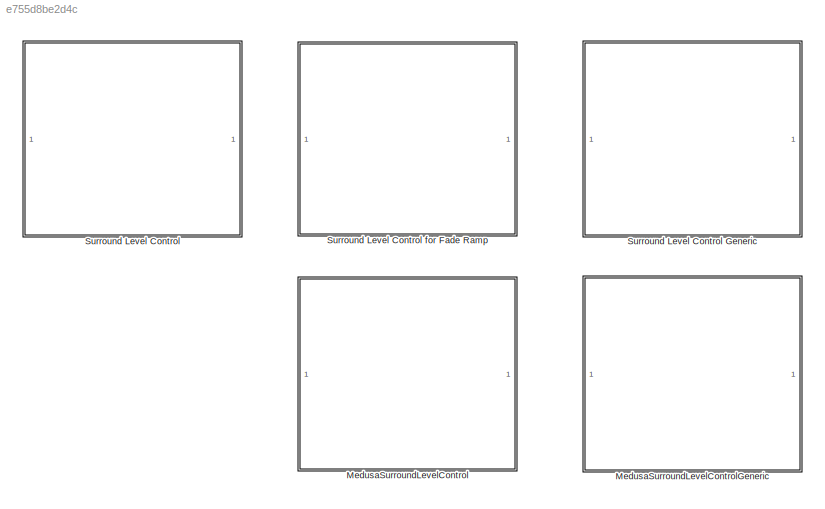
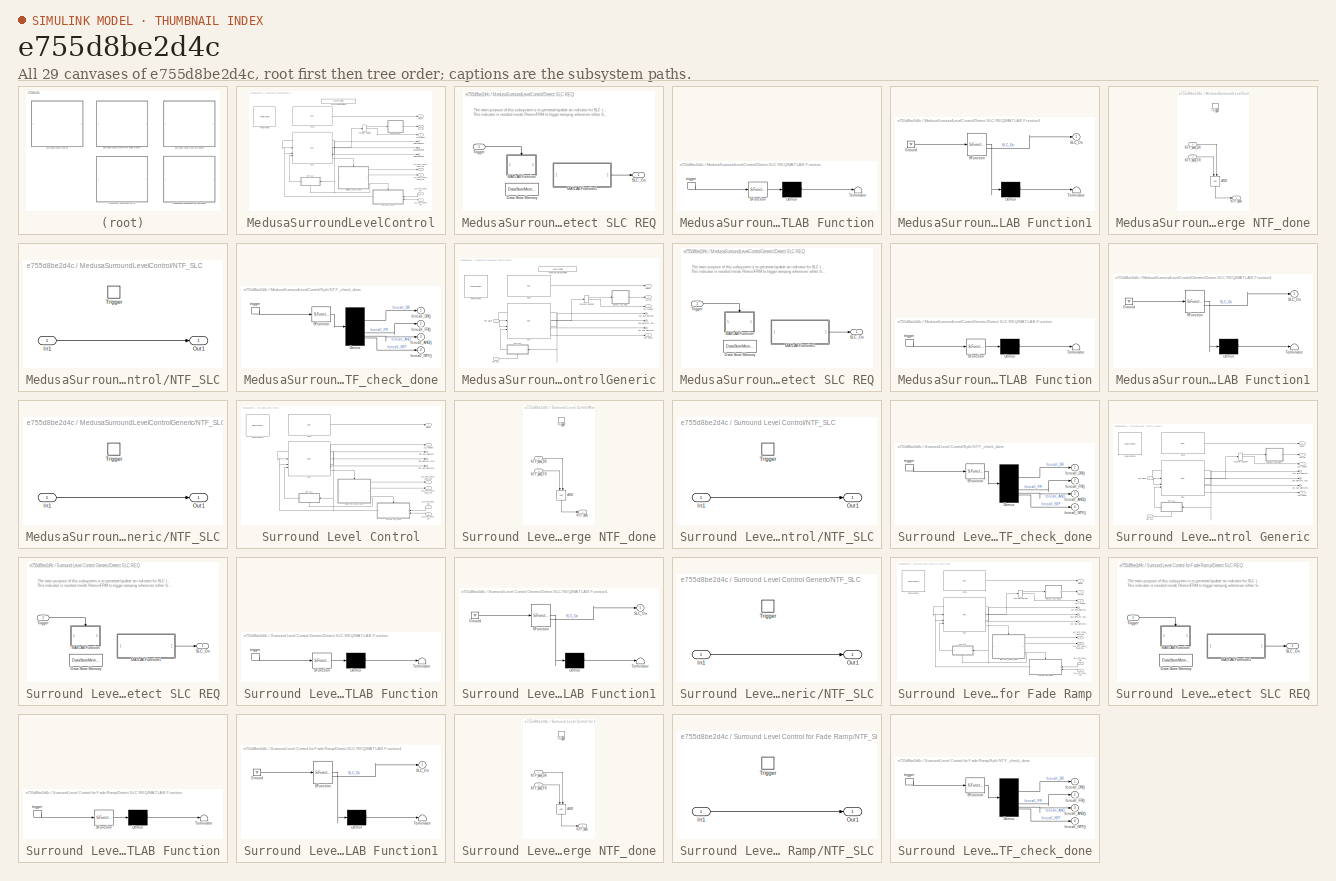
[diagram: thumbnail index - all 29 canvases of the model, root first then tree order]
MODEL slx_e755d8be2d4c
KIND library
CONFIG AbsTol = auto
CONFIG EnableMultiTasking = off
CONFIG FixedStep = auto
CONFIG MaxStep = auto
CONFIG MinStep = auto
CONFIG RelTol = 1e-3
CONFIG SampleTimeConstraint = Unconstrained
CONFIG SolverName = VariableStepAuto
CONFIG StartTime = 0.0
CONFIG StopTime = 10.0
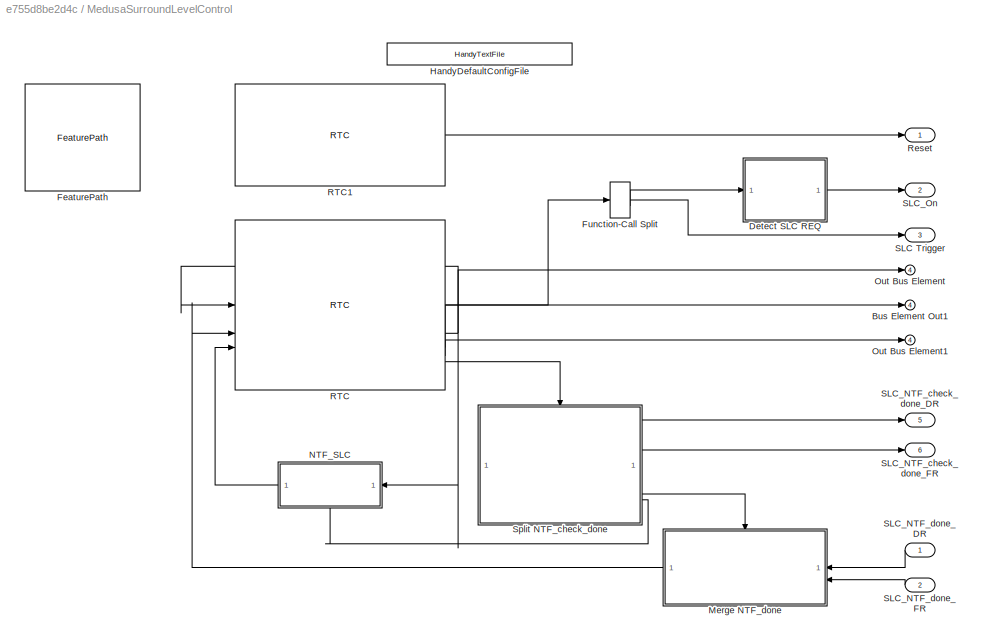
BLOCK [SubSystem] MedusaSurroundLevelControl
BLOCK [Outport] MedusaSurroundLevelControl/Bus Element Out1
  Port = 4
  VectorParamsAs1DForOutWhenUnconnected = off
BLOCK [SubSystem] MedusaSurroundLevelControl/Detect SLC REQ
BLOCK [DataStoreMemory] MedusaSurroundLevelControl/Detect SLC REQ/Data Store Memory
  DataStoreName = TriggerCount
  OutDataTypeStr = single
  ReadBeforeWriteMsg = warning
  ShowAdditionalParam = off
  SignalType = real
  WriteAfterReadMsg = warning
  WriteAfterWriteMsg = warning
BLOCK [SubSystem] MedusaSurroundLevelControl/Detect SLC REQ/MATLAB Function
  ErrorFcn = Stateflow.Translate.translate
  PermitHierarchicalResolution = ExplicitOnly
  SFBlockType = MATLAB Function
  TreatAsAtomicUnit = on
BLOCK [Demux] MedusaSurroundLevelControl/Detect SLC REQ/MATLAB Function/ Demux 
  Outputs = 1
BLOCK [S-Function] MedusaSurroundLevelControl/Detect SLC REQ/MATLAB Function/ SFunction 
  EnableBusSupport = off
  FunctionName = sf_sfun
  PortCounts = [1 1]
  SFcnIsStateOwnerBlock = off
  SFunctionDeploymentMode = off
  Tag = Stateflow S-Function 7
BLOCK [Terminator] MedusaSurroundLevelControl/Detect SLC REQ/MATLAB Function/ Terminator 
BLOCK [TriggerPort] MedusaSurroundLevelControl/Detect SLC REQ/MATLAB Function/trigger
  ShowOutputPort = on
  StatesWhenEnabling = reset
  TriggerType = function-call
  VariantControl = (inherit)
BLOCK [SubSystem] MedusaSurroundLevelControl/Detect SLC REQ/MATLAB Function1
  ErrorFcn = Stateflow.Translate.translate
  PermitHierarchicalResolution = ExplicitOnly
  SFBlockType = MATLAB Function
  TreatAsAtomicUnit = on
BLOCK [Demux] MedusaSurroundLevelControl/Detect SLC REQ/MATLAB Function1/ Demux 
  Outputs = 1
BLOCK [Ground] MedusaSurroundLevelControl/Detect SLC REQ/MATLAB Function1/ Ground 
BLOCK [S-Function] MedusaSurroundLevelControl/Detect SLC REQ/MATLAB Function1/ SFunction 
  EnableBusSupport = off
  FunctionName = sf_sfun
  PortCounts = [1 2]
  SFcnIsStateOwnerBlock = off
  SFunctionDeploymentMode = off
  Tag = Stateflow S-Function 9
BLOCK [Terminator] MedusaSurroundLevelControl/Detect SLC REQ/MATLAB Function1/ Terminator 
BLOCK [Outport] MedusaSurroundLevelControl/Detect SLC REQ/MATLAB Function1/SLC_On
BLOCK [Outport] MedusaSurroundLevelControl/Detect SLC REQ/SLC_On
BLOCK [Inport] MedusaSurroundLevelControl/Detect SLC REQ/Trigger
BLOCK [Reference] MedusaSurroundLevelControl/FeaturePath  REF=FeaturePath/FeaturePath
  SourceBlock = FeaturePath/FeaturePath
  SourceProductName = Bose Talaria
  SourceType = Talaria Feature Path
BLOCK [FunctionCallSplit] MedusaSurroundLevelControl/Function-Call Split
  IconShape = distinctive
  NumOutputPorts = 2
BLOCK [Reference] MedusaSurroundLevelControl/HandyDefaultConfigFile  REF=HandyTextFile/HandyTextFile
  SourceBlock = HandyTextFile/HandyTextFile
  SourceProductName = Bose Talaria
  SourceType = Talaria Handy Text File
BLOCK [SubSystem] MedusaSurroundLevelControl/Merge NTF_done
BLOCK [Logic] MedusaSurroundLevelControl/Merge NTF_done/AND
  AllPortsSameDT = off
  IconShape = distinctive
  NameLocation = left
  OutDataTypeStr = boolean
BLOCK [Outport] MedusaSurroundLevelControl/Merge NTF_done/NTF_done
  VectorParamsAs1DForOutWhenUnconnected = off
BLOCK [Inport] MedusaSurroundLevelControl/Merge NTF_done/NTF_done_DR
BLOCK [Inport] MedusaSurroundLevelControl/Merge NTF_done/NTF_done_FR
  Port = 2
BLOCK [TriggerPort] MedusaSurroundLevelControl/Merge NTF_done/Trigger
  PortDimensions = 1
  StatesWhenEnabling = held
  TriggerType = function-call
  VariantControl = Variant
BLOCK [SubSystem] MedusaSurroundLevelControl/NTF_SLC
  NameLocation = top
  TreatAsAtomicUnit = on
BLOCK [Inport] MedusaSurroundLevelControl/NTF_SLC/In1
BLOCK [Outport] MedusaSurroundLevelControl/NTF_SLC/Out1
BLOCK [TriggerPort] MedusaSurroundLevelControl/NTF_SLC/Trigger
  StatesWhenEnabling = held
  TriggerType = function-call
  VariantControl = Variant
BLOCK [Outport] MedusaSurroundLevelControl/Out Bus Element
  Port = 4
  VectorParamsAs1DForOutWhenUnconnected = off
BLOCK [Outport] MedusaSurroundLevelControl/Out Bus Element1
  Port = 4
  VectorParamsAs1DForOutWhenUnconnected = off
BLOCK [Reference] MedusaSurroundLevelControl/RTC  REF=RTC/RTC
  Description = Contains the value indicated by the surround knob.
  SourceBlock = RTC/RTC
  SourceProductName = Bose Talaria
  SourceType = Talaria RTC Receive
BLOCK [Reference] MedusaSurroundLevelControl/RTC1  REF=RTC/RTC
  SourceBlock = RTC/RTC
  SourceProductName = Bose Talaria
  SourceType = Talaria RTC Receive
BLOCK [Outport] MedusaSurroundLevelControl/Reset
  VectorParamsAs1DForOutWhenUnconnected = off
BLOCK [Outport] MedusaSurroundLevelControl/SLC Trigger
  Port = 3
  VectorParamsAs1DForOutWhenUnconnected = off
BLOCK [Outport] MedusaSurroundLevelControl/SLC_NTF_check_done_DR
  Port = 5
  VectorParamsAs1DForOutWhenUnconnected = off
BLOCK [Outport] MedusaSurroundLevelControl/SLC_NTF_check_done_FR
  Port = 6
  VectorParamsAs1DForOutWhenUnconnected = off
BLOCK [Inport] MedusaSurroundLevelControl/SLC_NTF_done_DR
BLOCK [Inport] MedusaSurroundLevelControl/SLC_NTF_done_FR
  Port = 2
BLOCK [Outport] MedusaSurroundLevelControl/SLC_On
  Port = 2
BLOCK [SubSystem] MedusaSurroundLevelControl/Split NTF_check_done
  ErrorFcn = Stateflow.Translate.translate
  PermitHierarchicalResolution = ExplicitOnly
  SFBlockType = MATLAB Function
  TreatAsAtomicUnit = on
BLOCK [Demux] MedusaSurroundLevelControl/Split NTF_check_done/ Demux 
BLOCK [S-Function] MedusaSurroundLevelControl/Split NTF_check_done/ SFunction 
  EnableBusSupport = off
  FunctionName = sf_sfun
  PortCounts = [1 1]
  SFcnIsStateOwnerBlock = off
  SFunctionDeploymentMode = off
  Tag = Stateflow S-Function 10
BLOCK [Outport] MedusaSurroundLevelControl/Split NTF_check_done/fcncall_AND()
  Port = 3
  VectorParamsAs1DForOutWhenUnconnected = off
BLOCK [Outport] MedusaSurroundLevelControl/Split NTF_check_done/fcncall_DR()
  VectorParamsAs1DForOutWhenUnconnected = off
BLOCK [Outport] MedusaSurroundLevelControl/Split NTF_check_done/fcncall_FR()
  Port = 2
  VectorParamsAs1DForOutWhenUnconnected = off
BLOCK [Outport] MedusaSurroundLevelControl/Split NTF_check_done/fcncall_NTF()
  Port = 4
BLOCK [TriggerPort] MedusaSurroundLevelControl/Split NTF_check_done/trigger
  ShowOutputPort = on
  StatesWhenEnabling = held
  TriggerType = function-call
  VariantControl = (inherit)
BLOCK [SubSystem] MedusaSurroundLevelControlGeneric
BLOCK [Outport] MedusaSurroundLevelControlGeneric/Bus Element Out1
  Port = 4
  VectorParamsAs1DForOutWhenUnconnected = off
BLOCK [SubSystem] MedusaSurroundLevelControlGeneric/Detect SLC REQ
BLOCK [DataStoreMemory] MedusaSurroundLevelControlGeneric/Detect SLC REQ/Data Store Memory
  DataStoreName = TriggerCount
  OutDataTypeStr = single
  ReadBeforeWriteMsg = warning
  ShowAdditionalParam = off
  SignalType = real
  WriteAfterReadMsg = warning
  WriteAfterWriteMsg = warning
BLOCK [SubSystem] MedusaSurroundLevelControlGeneric/Detect SLC REQ/MATLAB Function
  ErrorFcn = Stateflow.Translate.translate
  PermitHierarchicalResolution = ExplicitOnly
  SFBlockType = MATLAB Function
  TreatAsAtomicUnit = on
BLOCK [Demux] MedusaSurroundLevelControlGeneric/Detect SLC REQ/MATLAB Function/ Demux 
  Outputs = 1
BLOCK [S-Function] MedusaSurroundLevelControlGeneric/Detect SLC REQ/MATLAB Function/ SFunction 
  EnableBusSupport = off
  FunctionName = sf_sfun
  PortCounts = [1 1]
  SFcnIsStateOwnerBlock = off
  SFunctionDeploymentMode = off
  Tag = Stateflow S-Function 5
BLOCK [Terminator] MedusaSurroundLevelControlGeneric/Detect SLC REQ/MATLAB Function/ Terminator 
BLOCK [TriggerPort] MedusaSurroundLevelControlGeneric/Detect SLC REQ/MATLAB Function/trigger
  ShowOutputPort = on
  StatesWhenEnabling = reset
  TriggerType = function-call
  VariantControl = (inherit)
BLOCK [SubSystem] MedusaSurroundLevelControlGeneric/Detect SLC REQ/MATLAB Function1
  ErrorFcn = Stateflow.Translate.translate
  PermitHierarchicalResolution = ExplicitOnly
  SFBlockType = MATLAB Function
  TreatAsAtomicUnit = on
BLOCK [Demux] MedusaSurroundLevelControlGeneric/Detect SLC REQ/MATLAB Function1/ Demux 
  Outputs = 1
BLOCK [Ground] MedusaSurroundLevelControlGeneric/Detect SLC REQ/MATLAB Function1/ Ground 
BLOCK [S-Function] MedusaSurroundLevelControlGeneric/Detect SLC REQ/MATLAB Function1/ SFunction 
  EnableBusSupport = off
  FunctionName = sf_sfun
  PortCounts = [1 2]
  SFcnIsStateOwnerBlock = off
  SFunctionDeploymentMode = off
  Tag = Stateflow S-Function 6
BLOCK [Terminator] MedusaSurroundLevelControlGeneric/Detect SLC REQ/MATLAB Function1/ Terminator 
BLOCK [Outport] MedusaSurroundLevelControlGeneric/Detect SLC REQ/MATLAB Function1/SLC_On
BLOCK [Outport] MedusaSurroundLevelControlGeneric/Detect SLC REQ/SLC_On
BLOCK [Inport] MedusaSurroundLevelControlGeneric/Detect SLC REQ/Trigger
BLOCK [Reference] MedusaSurroundLevelControlGeneric/FeaturePath  REF=FeaturePath/FeaturePath
  SourceBlock = FeaturePath/FeaturePath
  SourceProductName = Bose Talaria
  SourceType = Talaria Feature Path
BLOCK [FunctionCallSplit] MedusaSurroundLevelControlGeneric/Function-Call Split
  IconShape = distinctive
  NumOutputPorts = 2
BLOCK [Reference] MedusaSurroundLevelControlGeneric/HandyDefaultConfigFile  REF=HandyTextFile/HandyTextFile
  SourceBlock = HandyTextFile/HandyTextFile
  SourceProductName = Bose Talaria
  SourceType = Talaria Handy Text File
BLOCK [Outport] MedusaSurroundLevelControlGeneric/NTF Check
  Port = 5
BLOCK [Inport] MedusaSurroundLevelControlGeneric/NTF Done
BLOCK [Inport] MedusaSurroundLevelControlGeneric/NTF SLC
  Port = 2
BLOCK [SubSystem] MedusaSurroundLevelControlGeneric/NTF_SLC
  NameLocation = top
  TreatAsAtomicUnit = on
BLOCK [Inport] MedusaSurroundLevelControlGeneric/NTF_SLC/In1
BLOCK [Outport] MedusaSurroundLevelControlGeneric/NTF_SLC/Out1
BLOCK [TriggerPort] MedusaSurroundLevelControlGeneric/NTF_SLC/Trigger
  StatesWhenEnabling = held
  TriggerType = function-call
  VariantControl = Variant
BLOCK [Outport] MedusaSurroundLevelControlGeneric/Out Bus Element
  Port = 4
  VectorParamsAs1DForOutWhenUnconnected = off
BLOCK [Outport] MedusaSurroundLevelControlGeneric/Out Bus Element1
  Port = 4
  VectorParamsAs1DForOutWhenUnconnected = off
BLOCK [Reference] MedusaSurroundLevelControlGeneric/RTC  REF=RTC/RTC
  Description = Contains the value indicated by the surround knob.
  SourceBlock = RTC/RTC
  SourceProductName = Bose Talaria
  SourceType = Talaria RTC Receive
BLOCK [Reference] MedusaSurroundLevelControlGeneric/RTC1  REF=RTC/RTC
  SourceBlock = RTC/RTC
  SourceProductName = Bose Talaria
  SourceType = Talaria RTC Receive
BLOCK [Outport] MedusaSurroundLevelControlGeneric/Reset
  VectorParamsAs1DForOutWhenUnconnected = off
BLOCK [Outport] MedusaSurroundLevelControlGeneric/SLC Trigger
  Port = 3
  VectorParamsAs1DForOutWhenUnconnected = off
BLOCK [Outport] MedusaSurroundLevelControlGeneric/SLC_On
  Port = 2
BLOCK [SubSystem] Surround Level Control
BLOCK [SubSystem] Surround Level Control Generic
BLOCK [Outport] Surround Level Control Generic/Bus Element Out1
  Port = 4
  VectorParamsAs1DForOutWhenUnconnected = off
BLOCK [SubSystem] Surround Level Control Generic/Detect SLC REQ
BLOCK [DataStoreMemory] Surround Level Control Generic/Detect SLC REQ/Data Store Memory
  DataStoreName = TriggerCount
  OutDataTypeStr = single
  ReadBeforeWriteMsg = warning
  ShowAdditionalParam = off
  SignalType = real
  WriteAfterReadMsg = warning
  WriteAfterWriteMsg = warning
BLOCK [SubSystem] Surround Level Control Generic/Detect SLC REQ/MATLAB Function
  ErrorFcn = Stateflow.Translate.translate
  PermitHierarchicalResolution = ExplicitOnly
  SFBlockType = MATLAB Function
  TreatAsAtomicUnit = on
BLOCK [Demux] Surround Level Control Generic/Detect SLC REQ/MATLAB Function/ Demux 
  Outputs = 1
BLOCK [S-Function] Surround Level Control Generic/Detect SLC REQ/MATLAB Function/ SFunction 
  EnableBusSupport = off
  FunctionName = sf_sfun
  PortCounts = [1 1]
  SFcnIsStateOwnerBlock = off
  SFunctionDeploymentMode = off
  Tag = Stateflow S-Function 3
BLOCK [Terminator] Surround Level Control Generic/Detect SLC REQ/MATLAB Function/ Terminator 
BLOCK [TriggerPort] Surround Level Control Generic/Detect SLC REQ/MATLAB Function/trigger
  ShowOutputPort = on
  StatesWhenEnabling = reset
  TriggerType = function-call
  VariantControl = (inherit)
BLOCK [SubSystem] Surround Level Control Generic/Detect SLC REQ/MATLAB Function1
  ErrorFcn = Stateflow.Translate.translate
  PermitHierarchicalResolution = ExplicitOnly
  SFBlockType = MATLAB Function
  TreatAsAtomicUnit = on
BLOCK [Demux] Surround Level Control Generic/Detect SLC REQ/MATLAB Function1/ Demux 
  Outputs = 1
BLOCK [Ground] Surround Level Control Generic/Detect SLC REQ/MATLAB Function1/ Ground 
BLOCK [S-Function] Surround Level Control Generic/Detect SLC REQ/MATLAB Function1/ SFunction 
  EnableBusSupport = off
  FunctionName = sf_sfun
  PortCounts = [1 2]
  SFcnIsStateOwnerBlock = off
  SFunctionDeploymentMode = off
  Tag = Stateflow S-Function 4
BLOCK [Terminator] Surround Level Control Generic/Detect SLC REQ/MATLAB Function1/ Terminator 
BLOCK [Outport] Surround Level Control Generic/Detect SLC REQ/MATLAB Function1/SLC_On
BLOCK [Outport] Surround Level Control Generic/Detect SLC REQ/SLC_On
BLOCK [Inport] Surround Level Control Generic/Detect SLC REQ/Trigger
BLOCK [Reference] Surround Level Control Generic/FeaturePath  REF=FeaturePath/FeaturePath
  SourceBlock = FeaturePath/FeaturePath
  SourceProductName = Bose Talaria
  SourceType = Bose Feature Path
BLOCK [FunctionCallSplit] Surround Level Control Generic/Function-Call Split
  IconShape = distinctive
  NumOutputPorts = 2
BLOCK [Outport] Surround Level Control Generic/NTF Check
  Port = 5
BLOCK [Inport] Surround Level Control Generic/NTF Done
BLOCK [Inport] Surround Level Control Generic/NTF SLC
  Port = 2
BLOCK [SubSystem] Surround Level Control Generic/NTF_SLC
  NameLocation = top
  TreatAsAtomicUnit = on
BLOCK [Inport] Surround Level Control Generic/NTF_SLC/In1
BLOCK [Outport] Surround Level Control Generic/NTF_SLC/Out1
BLOCK [TriggerPort] Surround Level Control Generic/NTF_SLC/Trigger
  StatesWhenEnabling = held
  TriggerType = function-call
  VariantControl = Variant
BLOCK [Outport] Surround Level Control Generic/Out Bus Element
  Port = 4
  VectorParamsAs1DForOutWhenUnconnected = off
BLOCK [Outport] Surround Level Control Generic/Out Bus Element1
  Port = 4
  VectorParamsAs1DForOutWhenUnconnected = off
BLOCK [Reference] Surround Level Control Generic/RTC  REF=RTC/RTC
  Description = Contains the value indicated by the surround knob.
  SourceBlock = RTC/RTC
  SourceProductName = Bose Talaria
  SourceType = Bose RTC Receive
BLOCK [Reference] Surround Level Control Generic/RTC1  REF=RTC/RTC
  SourceBlock = RTC/RTC
  SourceProductName = Bose Talaria
  SourceType = Bose RTC Receive
BLOCK [Outport] Surround Level Control Generic/Reset
  VectorParamsAs1DForOutWhenUnconnected = off
BLOCK [Outport] Surround Level Control Generic/SLC Trigger
  Port = 3
  VectorParamsAs1DForOutWhenUnconnected = off
BLOCK [Outport] Surround Level Control Generic/SLC_On
  Port = 2
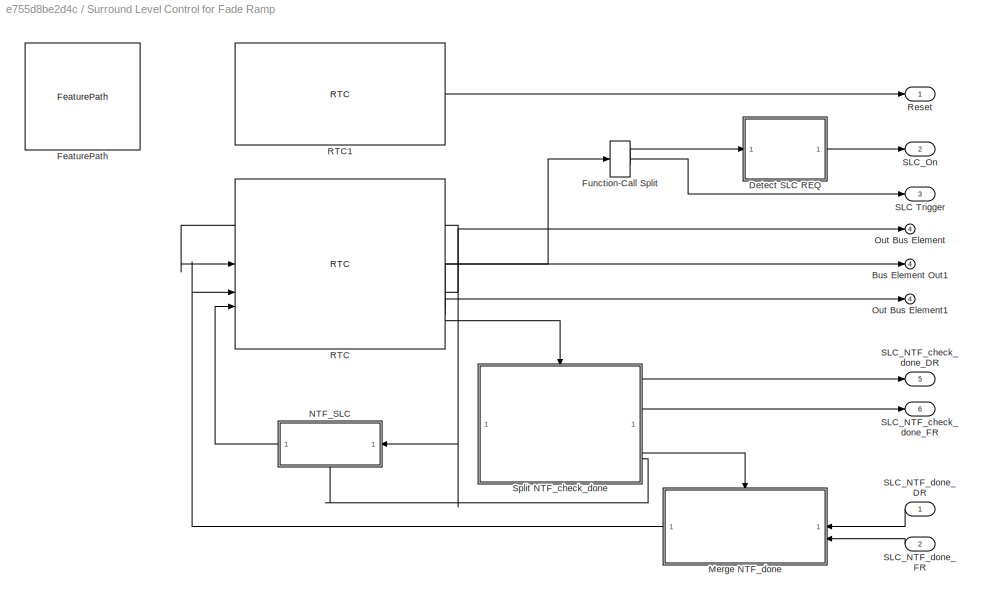
BLOCK [SubSystem] Surround Level Control for Fade Ramp
BLOCK [Outport] Surround Level Control for Fade Ramp/Bus Element Out1
  Port = 4
  VectorParamsAs1DForOutWhenUnconnected = off
BLOCK [SubSystem] Surround Level Control for Fade Ramp/Detect SLC REQ
BLOCK [DataStoreMemory] Surround Level Control for Fade Ramp/Detect SLC REQ/Data Store Memory
  DataStoreName = TriggerCount
  OutDataTypeStr = single
  ReadBeforeWriteMsg = warning
  ShowAdditionalParam = off
  SignalType = real
  WriteAfterReadMsg = warning
  WriteAfterWriteMsg = warning
BLOCK [SubSystem] Surround Level Control for Fade Ramp/Detect SLC REQ/MATLAB Function
  ErrorFcn = Stateflow.Translate.translate
  PermitHierarchicalResolution = ExplicitOnly
  SFBlockType = MATLAB Function
  TreatAsAtomicUnit = on
BLOCK [Demux] Surround Level Control for Fade Ramp/Detect SLC REQ/MATLAB Function/ Demux 
  Outputs = 1
BLOCK [S-Function] Surround Level Control for Fade Ramp/Detect SLC REQ/MATLAB Function/ SFunction 
  EnableBusSupport = off
  FunctionName = sf_sfun
  PortCounts = [1 1]
  SFcnIsStateOwnerBlock = off
  SFunctionDeploymentMode = off
  Tag = Stateflow S-Function 1
BLOCK [Terminator] Surround Level Control for Fade Ramp/Detect SLC REQ/MATLAB Function/ Terminator 
BLOCK [TriggerPort] Surround Level Control for Fade Ramp/Detect SLC REQ/MATLAB Function/trigger
  ShowOutputPort = on
  StatesWhenEnabling = reset
  TriggerType = function-call
  VariantControl = (inherit)
BLOCK [SubSystem] Surround Level Control for Fade Ramp/Detect SLC REQ/MATLAB Function1
  ErrorFcn = Stateflow.Translate.translate
  PermitHierarchicalResolution = ExplicitOnly
  SFBlockType = MATLAB Function
  TreatAsAtomicUnit = on
BLOCK [Demux] Surround Level Control for Fade Ramp/Detect SLC REQ/MATLAB Function1/ Demux 
  Outputs = 1
BLOCK [Ground] Surround Level Control for Fade Ramp/Detect SLC REQ/MATLAB Function1/ Ground 
BLOCK [S-Function] Surround Level Control for Fade Ramp/Detect SLC REQ/MATLAB Function1/ SFunction 
  EnableBusSupport = off
  FunctionName = sf_sfun
  PortCounts = [1 2]
  SFcnIsStateOwnerBlock = off
  SFunctionDeploymentMode = off
  Tag = Stateflow S-Function 8
BLOCK [Terminator] Surround Level Control for Fade Ramp/Detect SLC REQ/MATLAB Function1/ Terminator 
BLOCK [Outport] Surround Level Control for Fade Ramp/Detect SLC REQ/MATLAB Function1/SLC_On
BLOCK [Outport] Surround Level Control for Fade Ramp/Detect SLC REQ/SLC_On
BLOCK [Inport] Surround Level Control for Fade Ramp/Detect SLC REQ/Trigger
BLOCK [Reference] Surround Level Control for Fade Ramp/FeaturePath  REF=FeaturePath/FeaturePath
  SourceBlock = FeaturePath/FeaturePath
  SourceProductName = Bose Talaria
  SourceType = Bose Feature Path
BLOCK [FunctionCallSplit] Surround Level Control for Fade Ramp/Function-Call Split
  IconShape = distinctive
  NumOutputPorts = 2
BLOCK [SubSystem] Surround Level Control for Fade Ramp/Merge NTF_done
BLOCK [Logic] Surround Level Control for Fade Ramp/Merge NTF_done/AND
  AllPortsSameDT = off
  IconShape = distinctive
  NameLocation = left
  OutDataTypeStr = boolean
BLOCK [Outport] Surround Level Control for Fade Ramp/Merge NTF_done/NTF_done
  VectorParamsAs1DForOutWhenUnconnected = off
BLOCK [Inport] Surround Level Control for Fade Ramp/Merge NTF_done/NTF_done_DR
BLOCK [Inport] Surround Level Control for Fade Ramp/Merge NTF_done/NTF_done_FR
  Port = 2
BLOCK [TriggerPort] Surround Level Control for Fade Ramp/Merge NTF_done/Trigger
  PortDimensions = 1
  StatesWhenEnabling = held
  TriggerType = function-call
  VariantControl = Variant
BLOCK [SubSystem] Surround Level Control for Fade Ramp/NTF_SLC
  NameLocation = top
  TreatAsAtomicUnit = on
BLOCK [Inport] Surround Level Control for Fade Ramp/NTF_SLC/In1
BLOCK [Outport] Surround Level Control for Fade Ramp/NTF_SLC/Out1
BLOCK [TriggerPort] Surround Level Control for Fade Ramp/NTF_SLC/Trigger
  StatesWhenEnabling = held
  TriggerType = function-call
  VariantControl = Variant
BLOCK [Outport] Surround Level Control for Fade Ramp/Out Bus Element
  Port = 4
  VectorParamsAs1DForOutWhenUnconnected = off
BLOCK [Outport] Surround Level Control for Fade Ramp/Out Bus Element1
  Port = 4
  VectorParamsAs1DForOutWhenUnconnected = off
BLOCK [Reference] Surround Level Control for Fade Ramp/RTC  REF=RTC/RTC
  Description = Contains the value indicated by the surround knob.
  SourceBlock = RTC/RTC
  SourceProductName = Bose Talaria
  SourceType = Bose RTC Receive
BLOCK [Reference] Surround Level Control for Fade Ramp/RTC1  REF=RTC/RTC
  SourceBlock = RTC/RTC
  SourceProductName = Bose Talaria
  SourceType = Bose RTC Receive
BLOCK [Outport] Surround Level Control for Fade Ramp/Reset
  VectorParamsAs1DForOutWhenUnconnected = off
BLOCK [Outport] Surround Level Control for Fade Ramp/SLC Trigger
  Port = 3
  VectorParamsAs1DForOutWhenUnconnected = off
BLOCK [Outport] Surround Level Control for Fade Ramp/SLC_NTF_check_done_DR
  Port = 5
  VectorParamsAs1DForOutWhenUnconnected = off
BLOCK [Outport] Surround Level Control for Fade Ramp/SLC_NTF_check_done_FR
  Port = 6
  VectorParamsAs1DForOutWhenUnconnected = off
BLOCK [Inport] Surround Level Control for Fade Ramp/SLC_NTF_done_DR
BLOCK [Inport] Surround Level Control for Fade Ramp/SLC_NTF_done_FR
  Port = 2
BLOCK [Outport] Surround Level Control for Fade Ramp/SLC_On
  Port = 2
BLOCK [SubSystem] Surround Level Control for Fade Ramp/Split NTF_check_done
  ErrorFcn = Stateflow.Translate.translate
  PermitHierarchicalResolution = ExplicitOnly
  SFBlockType = MATLAB Function
  TreatAsAtomicUnit = on
BLOCK [Demux] Surround Level Control for Fade Ramp/Split NTF_check_done/ Demux 
BLOCK [S-Function] Surround Level Control for Fade Ramp/Split NTF_check_done/ SFunction 
  EnableBusSupport = off
  FunctionName = sf_sfun
  PortCounts = [1 1]
  SFcnIsStateOwnerBlock = off
  SFunctionDeploymentMode = off
  Tag = Stateflow S-Function 2
BLOCK [Outport] Surround Level Control for Fade Ramp/Split NTF_check_done/fcncall_AND()
  Port = 3
  VectorParamsAs1DForOutWhenUnconnected = off
BLOCK [Outport] Surround Level Control for Fade Ramp/Split NTF_check_done/fcncall_DR()
  VectorParamsAs1DForOutWhenUnconnected = off
BLOCK [Outport] Surround Level Control for Fade Ramp/Split NTF_check_done/fcncall_FR()
  Port = 2
  VectorParamsAs1DForOutWhenUnconnected = off
BLOCK [Outport] Surround Level Control for Fade Ramp/Split NTF_check_done/fcncall_NTF()
  Port = 4
BLOCK [TriggerPort] Surround Level Control for Fade Ramp/Split NTF_check_done/trigger
  ShowOutputPort = on
  StatesWhenEnabling = held
  TriggerType = function-call
  VariantControl = (inherit)
BLOCK [Outport] Surround Level Control/Bus Element Out1
  Port = 3
  VectorParamsAs1DForOutWhenUnconnected = off
BLOCK [Reference] Surround Level Control/FeaturePath  REF=FeaturePath/FeaturePath
  SourceBlock = FeaturePath/FeaturePath
  SourceProductName = Bose Talaria
  SourceType = Bose Feature Path
BLOCK [SubSystem] Surround Level Control/Merge NTF_done
BLOCK [Logic] Surround Level Control/Merge NTF_done/AND
  AllPortsSameDT = off
  IconShape = distinctive
  NameLocation = left
  OutDataTypeStr = boolean
BLOCK [Outport] Surround Level Control/Merge NTF_done/NTF_done
  VectorParamsAs1DForOutWhenUnconnected = off
BLOCK [Inport] Surround Level Control/Merge NTF_done/NTF_done_DR
BLOCK [Inport] Surround Level Control/Merge NTF_done/NTF_done_FR
  Port = 2
BLOCK [TriggerPort] Surround Level Control/Merge NTF_done/Trigger
  PortDimensions = 1
  StatesWhenEnabling = held
  TriggerType = function-call
  VariantControl = Variant
BLOCK [SubSystem] Surround Level Control/NTF_SLC
  NameLocation = top
  TreatAsAtomicUnit = on
BLOCK [Inport] Surround Level Control/NTF_SLC/In1
BLOCK [Outport] Surround Level Control/NTF_SLC/Out1
BLOCK [TriggerPort] Surround Level Control/NTF_SLC/Trigger
  StatesWhenEnabling = held
  TriggerType = function-call
  VariantControl = Variant
BLOCK [Outport] Surround Level Control/Out Bus Element
  Port = 3
  VectorParamsAs1DForOutWhenUnconnected = off
BLOCK [Outport] Surround Level Control/Out Bus Element1
  Port = 3
  VectorParamsAs1DForOutWhenUnconnected = off
BLOCK [Reference] Surround Level Control/RTC  REF=RTC/RTC
  Description = Contains the value indicated by the surround knob.
  SourceBlock = RTC/RTC
  SourceProductName = Bose Talaria
  SourceType = Bose RTC Receive
BLOCK [Reference] Surround Level Control/RTC1  REF=RTC/RTC
  SourceBlock = RTC/RTC
  SourceProductName = Bose Talaria
  SourceType = Bose RTC Receive
BLOCK [Outport] Surround Level Control/Reset
  VectorParamsAs1DForOutWhenUnconnected = off
BLOCK [Outport] Surround Level Control/SLC Trigger
  Port = 2
  VectorParamsAs1DForOutWhenUnconnected = off
BLOCK [Outport] Surround Level Control/SLC_NTF_check_done_DR
  Port = 4
  VectorParamsAs1DForOutWhenUnconnected = off
BLOCK [Outport] Surround Level Control/SLC_NTF_check_done_FR
  Port = 5
  VectorParamsAs1DForOutWhenUnconnected = off
BLOCK [Inport] Surround Level Control/SLC_NTF_done_DR
BLOCK [Inport] Surround Level Control/SLC_NTF_done_FR
  Port = 2
BLOCK [SubSystem] Surround Level Control/Split NTF_check_done
  ErrorFcn = Stateflow.Translate.translate
  PermitHierarchicalResolution = ExplicitOnly
  SFBlockType = MATLAB Function
  TreatAsAtomicUnit = on
BLOCK [Demux] Surround Level Control/Split NTF_check_done/ Demux 
BLOCK [S-Function] Surround Level Control/Split NTF_check_done/ SFunction 
  EnableBusSupport = off
  FunctionName = sf_sfun
  PortCounts = [1 1]
  SFcnIsStateOwnerBlock = off
  SFunctionDeploymentMode = off
  Tag = Stateflow S-Function 42
BLOCK [Outport] Surround Level Control/Split NTF_check_done/fcncall_AND()
  Port = 3
  VectorParamsAs1DForOutWhenUnconnected = off
BLOCK [Outport] Surround Level Control/Split NTF_check_done/fcncall_DR()
  VectorParamsAs1DForOutWhenUnconnected = off
BLOCK [Outport] Surround Level Control/Split NTF_check_done/fcncall_FR()
  Port = 2
  VectorParamsAs1DForOutWhenUnconnected = off
BLOCK [Outport] Surround Level Control/Split NTF_check_done/fcncall_NTF()
  Port = 4
BLOCK [TriggerPort] Surround Level Control/Split NTF_check_done/trigger
  ShowOutputPort = on
  StatesWhenEnabling = held
  TriggerType = function-call
  VariantControl = (inherit)
ANNOTATION MedusaSurroundLevelControl/Detect SLC REQ: The main purpose of this subsystem is to generate/update an indicator for SLC trigger i.e., whether SLC is triggered or not. This indicator is needed inside Premix/FRM to trigger ramping whenever either SLC or Fader Downmix is requested .
ANNOTATION MedusaSurroundLevelControlGeneric/Detect SLC REQ: The main purpose of this subsystem is to generate/update an indicator for SLC trigger i.e., whether SLC is triggered or not. This indicator is needed inside Premix/FRM to trigger ramping whenever either SLC or Fader Downmix is requested .
ANNOTATION Surround Level Control Generic/Detect SLC REQ: The main purpose of this subsystem is to generate/update an indicator for SLC trigger i.e., whether SLC is triggered or not. This indicator is needed inside Premix/FRM to trigger ramping whenever either SLC or Fader Downmix is requested .
ANNOTATION Surround Level Control for Fade Ramp/Detect SLC REQ: The main purpose of this subsystem is to generate/update an indicator for SLC trigger i.e., whether SLC is triggered or not. This indicator is needed inside Premix/FRM to trigger ramping whenever either SLC or Fader Downmix is requested .
LINE MedusaSurroundLevelControl/Detect SLC REQ/MATLAB Function1:1 -> MedusaSurroundLevelControl/Detect SLC REQ/SLC_On:1
LINE MedusaSurroundLevelControl/Detect SLC REQ/Trigger:1 -> MedusaSurroundLevelControl/Detect SLC REQ/MATLAB Function:trigger
LINE MedusaSurroundLevelControl/Detect SLC REQ:1 -> MedusaSurroundLevelControl/SLC_On:1
LINE MedusaSurroundLevelControl/Function-Call Split:1 -> MedusaSurroundLevelControl/SLC Trigger:1
LINE MedusaSurroundLevelControl/Function-Call Split:2 -> MedusaSurroundLevelControl/Detect SLC REQ:1
LINE MedusaSurroundLevelControl/Merge NTF_done/AND:1 -> MedusaSurroundLevelControl/Merge NTF_done/NTF_done:1
LINE MedusaSurroundLevelControl/Merge NTF_done/NTF_done_DR:1 -> MedusaSurroundLevelControl/Merge NTF_done/AND:2
LINE MedusaSurroundLevelControl/Merge NTF_done/NTF_done_FR:1 -> MedusaSurroundLevelControl/Merge NTF_done/AND:1
LINE MedusaSurroundLevelControl/Merge NTF_done:1 -> MedusaSurroundLevelControl/RTC:2
LINE MedusaSurroundLevelControl/NTF_SLC/In1:1 -> MedusaSurroundLevelControl/NTF_SLC/Out1:1
LINE MedusaSurroundLevelControl/NTF_SLC:1 -> MedusaSurroundLevelControl/RTC:3
LINE MedusaSurroundLevelControl/RTC1:1 -> MedusaSurroundLevelControl/Reset:1
LINE MedusaSurroundLevelControl/RTC:1 -> MedusaSurroundLevelControl/Function-Call Split:1
NET MedusaSurroundLevelControl/RTC:2 -> MedusaSurroundLevelControl/NTF_SLC:1, MedusaSurroundLevelControl/Out Bus Element:1, MedusaSurroundLevelControl/RTC:1
LINE MedusaSurroundLevelControl/RTC:3 -> MedusaSurroundLevelControl/Bus Element Out1:1
LINE MedusaSurroundLevelControl/RTC:4 -> MedusaSurroundLevelControl/Out Bus Element1:1
LINE MedusaSurroundLevelControl/RTC:5 -> MedusaSurroundLevelControl/Split NTF_check_done:trigger
LINE MedusaSurroundLevelControl/SLC_NTF_done_DR:1 -> MedusaSurroundLevelControl/Merge NTF_done:1
LINE MedusaSurroundLevelControl/SLC_NTF_done_FR:1 -> MedusaSurroundLevelControl/Merge NTF_done:2
LINE MedusaSurroundLevelControl/Split NTF_check_done:1 -> MedusaSurroundLevelControl/SLC_NTF_check_done_DR:1
LINE MedusaSurroundLevelControl/Split NTF_check_done:2 -> MedusaSurroundLevelControl/SLC_NTF_check_done_FR:1
LINE MedusaSurroundLevelControl/Split NTF_check_done:3 -> MedusaSurroundLevelControl/Merge NTF_done:trigger
LINE MedusaSurroundLevelControl/Split NTF_check_done:4 -> MedusaSurroundLevelControl/NTF_SLC:trigger
LINE MedusaSurroundLevelControlGeneric/Detect SLC REQ/MATLAB Function1:1 -> MedusaSurroundLevelControlGeneric/Detect SLC REQ/SLC_On:1
LINE MedusaSurroundLevelControlGeneric/Detect SLC REQ/Trigger:1 -> MedusaSurroundLevelControlGeneric/Detect SLC REQ/MATLAB Function:trigger
LINE MedusaSurroundLevelControlGeneric/Detect SLC REQ:1 -> MedusaSurroundLevelControlGeneric/SLC_On:1
LINE MedusaSurroundLevelControlGeneric/Function-Call Split:1 -> MedusaSurroundLevelControlGeneric/SLC Trigger:1
LINE MedusaSurroundLevelControlGeneric/Function-Call Split:2 -> MedusaSurroundLevelControlGeneric/Detect SLC REQ:1
LINE MedusaSurroundLevelControlGeneric/NTF Done:1 -> MedusaSurroundLevelControlGeneric/RTC:2
LINE MedusaSurroundLevelControlGeneric/NTF SLC:1 -> MedusaSurroundLevelControlGeneric/NTF_SLC:trigger
LINE MedusaSurroundLevelControlGeneric/NTF_SLC/In1:1 -> MedusaSurroundLevelControlGeneric/NTF_SLC/Out1:1
LINE MedusaSurroundLevelControlGeneric/NTF_SLC:1 -> MedusaSurroundLevelControlGeneric/RTC:3
LINE MedusaSurroundLevelControlGeneric/RTC1:1 -> MedusaSurroundLevelControlGeneric/Reset:1
LINE MedusaSurroundLevelControlGeneric/RTC:1 -> MedusaSurroundLevelControlGeneric/Function-Call Split:1
NET MedusaSurroundLevelControlGeneric/RTC:2 -> MedusaSurroundLevelControlGeneric/NTF_SLC:1, MedusaSurroundLevelControlGeneric/Out Bus Element:1, MedusaSurroundLevelControlGeneric/RTC:1
LINE MedusaSurroundLevelControlGeneric/RTC:3 -> MedusaSurroundLevelControlGeneric/Bus Element Out1:1
LINE MedusaSurroundLevelControlGeneric/RTC:4 -> MedusaSurroundLevelControlGeneric/Out Bus Element1:1
LINE MedusaSurroundLevelControlGeneric/RTC:5 -> MedusaSurroundLevelControlGeneric/NTF Check:1
LINE Surround Level Control Generic/Detect SLC REQ/MATLAB Function1:1 -> Surround Level Control Generic/Detect SLC REQ/SLC_On:1
LINE Surround Level Control Generic/Detect SLC REQ/Trigger:1 -> Surround Level Control Generic/Detect SLC REQ/MATLAB Function:trigger
LINE Surround Level Control Generic/Detect SLC REQ:1 -> Surround Level Control Generic/SLC_On:1
LINE Surround Level Control Generic/Function-Call Split:1 -> Surround Level Control Generic/SLC Trigger:1
LINE Surround Level Control Generic/Function-Call Split:2 -> Surround Level Control Generic/Detect SLC REQ:1
LINE Surround Level Control Generic/NTF Done:1 -> Surround Level Control Generic/RTC:2
LINE Surround Level Control Generic/NTF SLC:1 -> Surround Level Control Generic/NTF_SLC:trigger
LINE Surround Level Control Generic/NTF_SLC/In1:1 -> Surround Level Control Generic/NTF_SLC/Out1:1
LINE Surround Level Control Generic/NTF_SLC:1 -> Surround Level Control Generic/RTC:3
LINE Surround Level Control Generic/RTC1:1 -> Surround Level Control Generic/Reset:1
LINE Surround Level Control Generic/RTC:1 -> Surround Level Control Generic/Function-Call Split:1
NET Surround Level Control Generic/RTC:2 -> Surround Level Control Generic/NTF_SLC:1, Surround Level Control Generic/Out Bus Element:1, Surround Level Control Generic/RTC:1
LINE Surround Level Control Generic/RTC:3 -> Surround Level Control Generic/Bus Element Out1:1
LINE Surround Level Control Generic/RTC:4 -> Surround Level Control Generic/Out Bus Element1:1
LINE Surround Level Control Generic/RTC:5 -> Surround Level Control Generic/NTF Check:1
LINE Surround Level Control for Fade Ramp/Detect SLC REQ/MATLAB Function1:1 -> Surround Level Control for Fade Ramp/Detect SLC REQ/SLC_On:1
LINE Surround Level Control for Fade Ramp/Detect SLC REQ/Trigger:1 -> Surround Level Control for Fade Ramp/Detect SLC REQ/MATLAB Function:trigger
LINE Surround Level Control for Fade Ramp/Detect SLC REQ:1 -> Surround Level Control for Fade Ramp/SLC_On:1
LINE Surround Level Control for Fade Ramp/Function-Call Split:1 -> Surround Level Control for Fade Ramp/SLC Trigger:1
LINE Surround Level Control for Fade Ramp/Function-Call Split:2 -> Surround Level Control for Fade Ramp/Detect SLC REQ:1
LINE Surround Level Control for Fade Ramp/Merge NTF_done/AND:1 -> Surround Level Control for Fade Ramp/Merge NTF_done/NTF_done:1
LINE Surround Level Control for Fade Ramp/Merge NTF_done/NTF_done_DR:1 -> Surround Level Control for Fade Ramp/Merge NTF_done/AND:2
LINE Surround Level Control for Fade Ramp/Merge NTF_done/NTF_done_FR:1 -> Surround Level Control for Fade Ramp/Merge NTF_done/AND:1
LINE Surround Level Control for Fade Ramp/Merge NTF_done:1 -> Surround Level Control for Fade Ramp/RTC:2
LINE Surround Level Control for Fade Ramp/NTF_SLC/In1:1 -> Surround Level Control for Fade Ramp/NTF_SLC/Out1:1
LINE Surround Level Control for Fade Ramp/NTF_SLC:1 -> Surround Level Control for Fade Ramp/RTC:3
LINE Surround Level Control for Fade Ramp/RTC1:1 -> Surround Level Control for Fade Ramp/Reset:1
LINE Surround Level Control for Fade Ramp/RTC:1 -> Surround Level Control for Fade Ramp/Function-Call Split:1
NET Surround Level Control for Fade Ramp/RTC:2 -> Surround Level Control for Fade Ramp/NTF_SLC:1, Surround Level Control for Fade Ramp/Out Bus Element:1, Surround Level Control for Fade Ramp/RTC:1
LINE Surround Level Control for Fade Ramp/RTC:3 -> Surround Level Control for Fade Ramp/Bus Element Out1:1
LINE Surround Level Control for Fade Ramp/RTC:4 -> Surround Level Control for Fade Ramp/Out Bus Element1:1
LINE Surround Level Control for Fade Ramp/RTC:5 -> Surround Level Control for Fade Ramp/Split NTF_check_done:trigger
LINE Surround Level Control for Fade Ramp/SLC_NTF_done_DR:1 -> Surround Level Control for Fade Ramp/Merge NTF_done:1
LINE Surround Level Control for Fade Ramp/SLC_NTF_done_FR:1 -> Surround Level Control for Fade Ramp/Merge NTF_done:2
LINE Surround Level Control for Fade Ramp/Split NTF_check_done:1 -> Surround Level Control for Fade Ramp/SLC_NTF_check_done_DR:1
LINE Surround Level Control for Fade Ramp/Split NTF_check_done:2 -> Surround Level Control for Fade Ramp/SLC_NTF_check_done_FR:1
LINE Surround Level Control for Fade Ramp/Split NTF_check_done:3 -> Surround Level Control for Fade Ramp/Merge NTF_done:trigger
LINE Surround Level Control for Fade Ramp/Split NTF_check_done:4 -> Surround Level Control for Fade Ramp/NTF_SLC:trigger
LINE Surround Level Control/Merge NTF_done/AND:1 -> Surround Level Control/Merge NTF_done/NTF_done:1
LINE Surround Level Control/Merge NTF_done/NTF_done_DR:1 -> Surround Level Control/Merge NTF_done/AND:2
LINE Surround Level Control/Merge NTF_done/NTF_done_FR:1 -> Surround Level Control/Merge NTF_done/AND:1
LINE Surround Level Control/Merge NTF_done:1 -> Surround Level Control/RTC:2
LINE Surround Level Control/NTF_SLC/In1:1 -> Surround Level Control/NTF_SLC/Out1:1
LINE Surround Level Control/NTF_SLC:1 -> Surround Level Control/RTC:3
LINE Surround Level Control/RTC1:1 -> Surround Level Control/Reset:1
LINE Surround Level Control/RTC:1 -> Surround Level Control/SLC Trigger:1
NET Surround Level Control/RTC:2 -> Surround Level Control/NTF_SLC:1, Surround Level Control/Out Bus Element:1, Surround Level Control/RTC:1
LINE Surround Level Control/RTC:3 -> Surround Level Control/Bus Element Out1:1
LINE Surround Level Control/RTC:4 -> Surround Level Control/Out Bus Element1:1
LINE Surround Level Control/RTC:5 -> Surround Level Control/Split NTF_check_done:trigger
LINE Surround Level Control/SLC_NTF_done_DR:1 -> Surround Level Control/Merge NTF_done:1
LINE Surround Level Control/SLC_NTF_done_FR:1 -> Surround Level Control/Merge NTF_done:2
LINE Surround Level Control/Split NTF_check_done:1 -> Surround Level Control/SLC_NTF_check_done_DR:1
LINE Surround Level Control/Split NTF_check_done:2 -> Surround Level Control/SLC_NTF_check_done_FR:1
LINE Surround Level Control/Split NTF_check_done:3 -> Surround Level Control/Merge NTF_done:trigger
LINE Surround Level Control/Split NTF_check_done:4 -> Surround Level Control/NTF_SLC:trigger
note: NET lines group one-source signal fan-out (src -> all destinations, sorted); 1:1 wires keep LINE
CHART Surround Level Control for Fade Ramp/Detect SLC REQ/MATLAB Function states=1 transitions=1
  STATE_LABEL 'eML_blk_kernel()'
  STATE_LABEL 'SCRIPT:\nfunction countTrigger()\n%#codegen\n\nglobal TriggerCount;\n\n% Increment the trigger count everytime the SLC is triggered. The changes\n% in this count are tracked to update a boolean indicator of whether the\n% SLC trigger.\nTriggerCount = TriggerCount+1;\n\nend'  <repeated x4 — deduplicated; at blocks: MATLAB Function>
CHART Surround Level Control for Fade Ramp/Split NTF_check_done states=1 transitions=1
  STATE_LABEL 'eML_blk_kernel()'
  STATE_LABEL 'SCRIPT:\nfunction FC_Split\n% Splits the incoming function call\nfcncall_DR();\nfcncall_FR();\nfcncall_AND();\nfcncall_NTF();\nend\n'
CHART Surround Level Control Generic/Detect SLC REQ/MATLAB Function states=1 transitions=1
  STATE_LABEL 'eML_blk_kernel()'
CHART Surround Level Control Generic/Detect SLC REQ/MATLAB Function1 states=1 transitions=1
  STATE_LABEL 'eML_blk_kernel()'
  STATE_LABEL 'SCRIPT:\nfunction SLC_On = detectSLCRequest()\n%#codegen\n\nglobal TriggerCount;\npersistent previousCount;\n\n% Initialize previousCount\nif(isempty(previousCount))\n    previousCount = single(0);  \nend\n\nSLC_On = false;\n\n% Track changes in TriggerCount to indicate SLC Trigger\nif(TriggerCount ~= previousCount)\n    SLC_On = true;\nend\n\n% Update the previousCount to contain the previous value of Trigger Count...<+53ch>'  <repeated x4 — deduplicated; at blocks: MATLAB Function1>
CHART MedusaSurroundLevelControlGeneric/Detect SLC REQ/MATLAB Function states=1 transitions=1
  STATE_LABEL 'eML_blk_kernel()'
CHART MedusaSurroundLevelControlGeneric/Detect SLC REQ/MATLAB Function1 states=1 transitions=1
  STATE_LABEL 'eML_blk_kernel()'
CHART MedusaSurroundLevelControl/Detect SLC REQ/MATLAB Function states=1 transitions=1
  STATE_LABEL 'eML_blk_kernel()'
CHART Surround Level Control for Fade Ramp/Detect SLC REQ/MATLAB Function1 states=1 transitions=1
  STATE_LABEL 'eML_blk_kernel()'
CHART MedusaSurroundLevelControl/Detect SLC REQ/MATLAB Function1 states=1 transitions=1
  STATE_LABEL 'eML_blk_kernel()'
CHART MedusaSurroundLevelControl/Split NTF_check_done states=1 transitions=1
  STATE_LABEL 'eML_blk_kernel()'
  STATE_LABEL 'SCRIPT:\nfunction FC_Split\n% Splits the incoming function call\nfcncall_DR();\nfcncall_FR();\nfcncall_AND();\nfcncall_NTF();\nend\n'
CHART Surround Level Control/Split NTF_check_done states=1 transitions=1
  STATE_LABEL 'eML_blk_kernel()'
  STATE_LABEL 'SCRIPT:\nfunction FC_Split\n% Splits the incoming function call\nfcncall_DR();\nfcncall_FR();\nfcncall_AND();\nfcncall_NTF();\nend\n'
CHART  states=0 transitions=0
CHART  states=0 transitions=0
CHART  states=0 transitions=0
CHART  states=0 transitions=0
CHART  states=0 transitions=0
CHART  states=0 transitions=0
CHART  states=0 transitions=0
CHART  states=0 transitions=0
CHART  states=0 transitions=0
CHART  states=0 transitions=0
CHART  states=0 transitions=0
